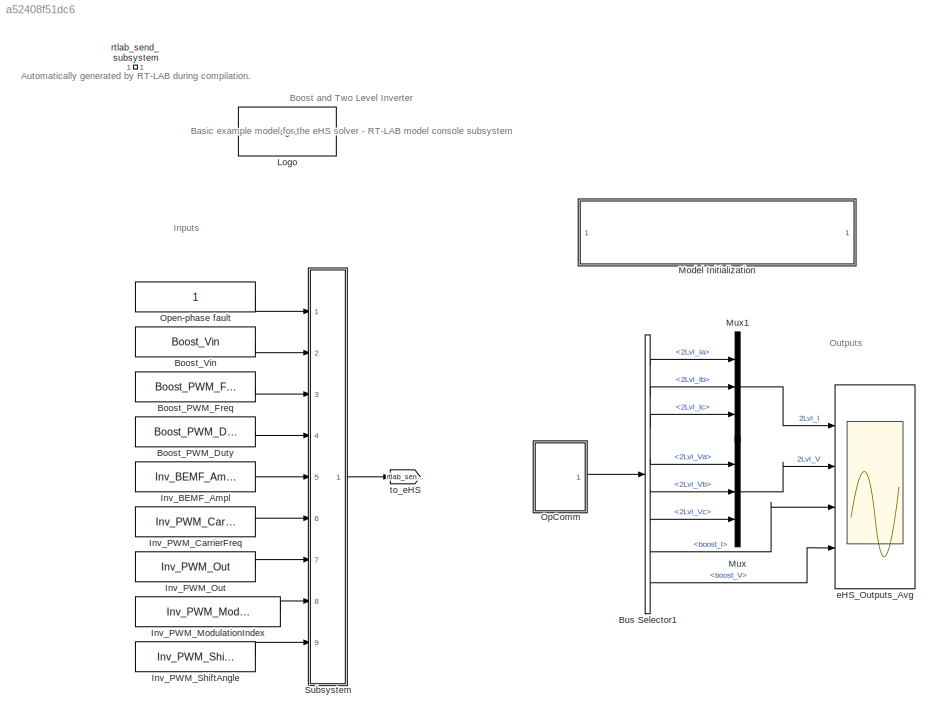
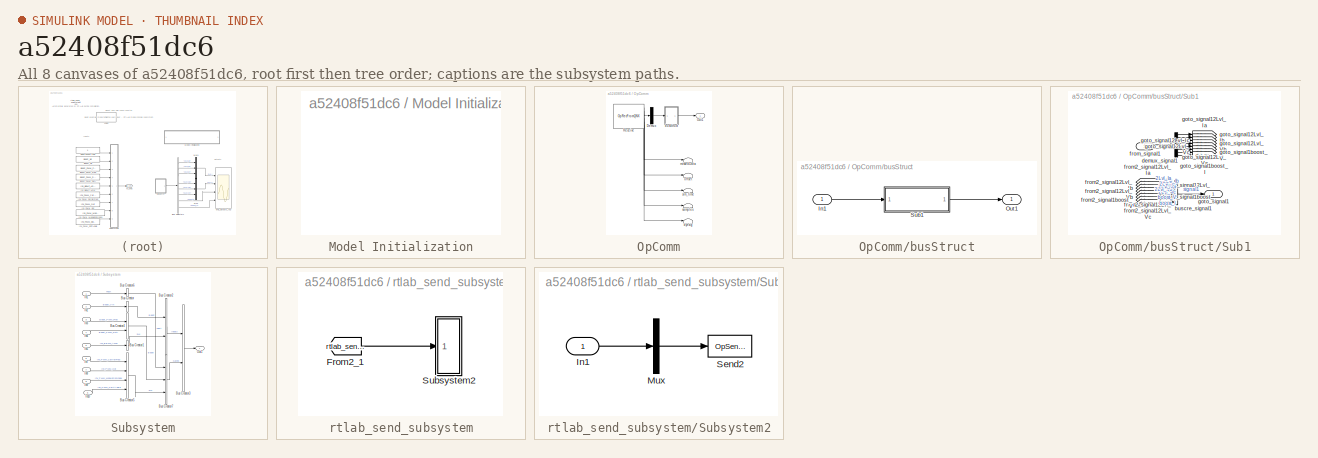
[diagram: thumbnail index - all 8 canvases of the model, root first then tree order]
MODEL slx_a52408f51dc6
KIND model
CONFIG AbsTol = auto
CONFIG EnableMultiTasking = off
CONFIG FixedStep = 2e-05
CONFIG InitFcn = Boost_and_Two_Level_Inverter_param;
CONFIG MaxStep = auto
CONFIG MinStep = auto
CONFIG PostLoadFcn = Boost_and_Two_Level_Inverter_param;
CONFIG RelTol = 1e-3
CONFIG SampleTimeConstraint = Unconstrained
CONFIG SolverName = ode3
CONFIG StartTime = 0.0
CONFIG StopTime = inf
BLOCK [Constant] Boost_PWM_Duty
  Value = Boost_PWM_Duty
BLOCK [Constant] Boost_PWM_Freq
  Value = Boost_PWM_Freq
BLOCK [Constant] Boost_Vin
  Value = Boost_Vin
BLOCK [BusSelector] Bus Selector1
  OutputSignals = 2Lvl_Ia,2Lvl_Ib,2Lvl_Ic,2Lvl_Va,2Lvl_Vb,2Lvl_Vc,boost_I,boost_V
  Ports = [1, 8]
BLOCK [Constant] Inv_BEMF_Ampl
  Value = Inv_BEMF_Ampl
BLOCK [Constant] Inv_PWM_CarrierFreq
  Value = Inv_PWM_CarrierFreq
BLOCK [Constant] Inv_PWM_ModulationIndex
  Value = Inv_PWM_ModulationIndex
BLOCK [Constant] Inv_PWM_Out
  Value = Inv_PWM_Out
BLOCK [Constant] Inv_PWM_ShiftAngle
  Value = Inv_PWM_ShiftAngle
BLOCK [Reference] Logo  REF=opal_lib/Logo1
  Ports = []
  SourceBlock = opal_lib/Logo1
  SourceType = Opal-RT logo
BLOCK [SubSystem] Model Initialization
  CopyFcn = set_param(gcb,'LinkStatus','none')
  Ports = []
  RequestExecContextInheritance = off
BLOCK [Mux] Mux
  DisplayOption = bar
  Inputs = 3
  Ports = [3, 1]
BLOCK [Mux] Mux1
  DisplayOption = bar
  Inputs = 3
  Ports = [3, 1]
BLOCK [SubSystem] OpComm
  Ports = [0, 1]
  RequestExecContextInheritance = off
BLOCK [Demux] OpComm/Demux
  Outputs = [8]
  Ports = [1, 1]
BLOCK [Outport] OpComm/Out1
BLOCK [Reference] OpComm/Receive  REF=opal_lib/Communication/OpRecFromQNX
  Ports = [0, 6]
  SourceBlock = opal_lib/Communication/OpRecFromQNX
  SourceType = OPAL Receive Icon
BLOCK [SubSystem] OpComm/busStruct
  Ports = [1, 1]
  RequestExecContextInheritance = off
BLOCK [Inport] OpComm/busStruct/In1
BLOCK [Outport] OpComm/busStruct/Out1
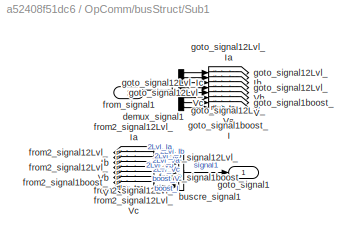
BLOCK [SubSystem] OpComm/busStruct/Sub1
  Ports = [1, 1]
  RequestExecContextInheritance = off
BLOCK [BusCreator] OpComm/busStruct/Sub1/buscre_signal1
  InheritFromInputs = on
  Inputs = 8
  Ports = [8, 1]
BLOCK [Demux] OpComm/busStruct/Sub1/demux_signal1
  Outputs = [1  1  1  1  1  1  1  1]
  Ports = [1, 8]
BLOCK [From] OpComm/busStruct/Sub1/from2_signal12Lvl_Ia
  GotoTag = rtlab_tag_1
BLOCK [From] OpComm/busStruct/Sub1/from2_signal12Lvl_Ib
  GotoTag = rtlab_tag_2
BLOCK [From] OpComm/busStruct/Sub1/from2_signal12Lvl_Ic
  GotoTag = rtlab_tag_3
BLOCK [From] OpComm/busStruct/Sub1/from2_signal12Lvl_Va
  GotoTag = rtlab_tag_4
BLOCK [From] OpComm/busStruct/Sub1/from2_signal12Lvl_Vb
  GotoTag = rtlab_tag_5
BLOCK [From] OpComm/busStruct/Sub1/from2_signal12Lvl_Vc
  GotoTag = rtlab_tag_6
BLOCK [From] OpComm/busStruct/Sub1/from2_signal1boost_I
  GotoTag = rtlab_tag_7
BLOCK [From] OpComm/busStruct/Sub1/from2_signal1boost_V
  GotoTag = rtlab_tag_8
BLOCK [Inport] OpComm/busStruct/Sub1/from_signal1
BLOCK [Outport] OpComm/busStruct/Sub1/goto_signal1
BLOCK [Goto] OpComm/busStruct/Sub1/goto_signal12Lvl_Ia
  GotoTag = rtlab_tag_1
BLOCK [Goto] OpComm/busStruct/Sub1/goto_signal12Lvl_Ib
  GotoTag = rtlab_tag_2
BLOCK [Goto] OpComm/busStruct/Sub1/goto_signal12Lvl_Ic
  GotoTag = rtlab_tag_3
BLOCK [Goto] OpComm/busStruct/Sub1/goto_signal12Lvl_Va
  GotoTag = rtlab_tag_4
BLOCK [Goto] OpComm/busStruct/Sub1/goto_signal12Lvl_Vb
  GotoTag = rtlab_tag_5
BLOCK [Goto] OpComm/busStruct/Sub1/goto_signal12Lvl_Vc
  GotoTag = rtlab_tag_6
BLOCK [Goto] OpComm/busStruct/Sub1/goto_signal1boost_I
  GotoTag = rtlab_tag_7
BLOCK [Goto] OpComm/busStruct/Sub1/goto_signal1boost_V
  GotoTag = rtlab_tag_8
BLOCK [Terminator] OpComm/dynsig
BLOCK [Terminator] OpComm/missedData
BLOCK [Terminator] OpComm/offset
BLOCK [Terminator] OpComm/samples
BLOCK [Terminator] OpComm/sim_time
BLOCK [Constant] Open-phase fault
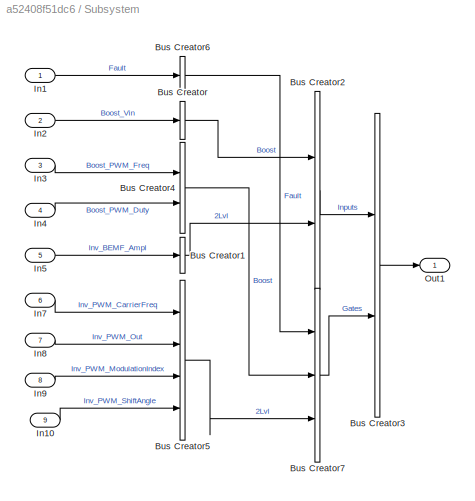
BLOCK [SubSystem] Subsystem
  Ports = [9, 1]
  RequestExecContextInheritance = off
BLOCK [BusCreator] Subsystem/Bus Creator
  DisplayOption = bar
  InheritFromInputs = on
  Inputs = 1
  Ports = [1, 1]
BLOCK [BusCreator] Subsystem/Bus Creator1
  DisplayOption = bar
  InheritFromInputs = on
  Inputs = 1
  Ports = [1, 1]
BLOCK [BusCreator] Subsystem/Bus Creator2
  DisplayOption = bar
  InheritFromInputs = on
  Inputs = 2
  Ports = [2, 1]
BLOCK [BusCreator] Subsystem/Bus Creator3
  DisplayOption = bar
  InheritFromInputs = on
  Inputs = 2
  Ports = [2, 1]
BLOCK [BusCreator] Subsystem/Bus Creator4
  DisplayOption = bar
  InheritFromInputs = on
  Inputs = 2
  Ports = [2, 1]
BLOCK [BusCreator] Subsystem/Bus Creator5
  DisplayOption = bar
  InheritFromInputs = on
  Inputs = 4
  Ports = [4, 1]
BLOCK [BusCreator] Subsystem/Bus Creator6
  DisplayOption = bar
  InheritFromInputs = on
  Inputs = 1
  Ports = [1, 1]
BLOCK [BusCreator] Subsystem/Bus Creator7
  DisplayOption = bar
  InheritFromInputs = on
  Inputs = 3
  Ports = [3, 1]
BLOCK [Inport] Subsystem/In1
BLOCK [Inport] Subsystem/In10
  Port = 9
BLOCK [Inport] Subsystem/In2
  Port = 2
BLOCK [Inport] Subsystem/In3
  Port = 3
BLOCK [Inport] Subsystem/In4
  Port = 4
BLOCK [Inport] Subsystem/In5
  Port = 5
BLOCK [Inport] Subsystem/In7
  Port = 6
BLOCK [Inport] Subsystem/In8
  Port = 7
BLOCK [Inport] Subsystem/In9
  Port = 8
BLOCK [Outport] Subsystem/Out1
  VectorParamsAs1DForOutWhenUnconnected = off
BLOCK [Scope] eHS_Outputs_Avg
  Floating = off
  NumInputPorts = 4
  Ports = [4]
  ScopeSpecificationString = Simulink.scopes.TimeScopeBlockCfg('CurrentConfiguration', extmgr.ConfigurationSet(extmgr.Configuration('Core','General UI',true),extmgr.Configuration('Core','Source UI',true),extmgr.Configuration('Sources','WiredSimulink',true,'DataLoggingLimitDataPoints',true,'DataLoggingSaveFormat','Array','DataLoggingDecimation','1','DataLoggingDecimateData',true),extmgr.Configuration('Visuals','Time Domain',tr...<+3637ch>
BLOCK [SubSystem] rtlab_send_subsystem
  Ports = []
  Priority = -100
  RequestExecContextInheritance = off
BLOCK [From] rtlab_send_subsystem/From2_1
  GotoTag = rtlab_send_1
  TagVisibility = global
BLOCK [SubSystem] rtlab_send_subsystem/Subsystem2
  Ports = [1]
  RequestExecContextInheritance = off
BLOCK [Inport] rtlab_send_subsystem/Subsystem2/In1
  PortDimensions = 9
BLOCK [Mux] rtlab_send_subsystem/Subsystem2/Mux
  Inputs = 1
  Ports = [1, 1]
BLOCK [Reference] rtlab_send_subsystem/Subsystem2/Send2  REF=opal_lib/Communication/OpSendPar
ToQNX
  Ports = [1]
  SourceBlock = opal_lib/Communication/OpSendPar\nToQNX
  SourceType = OPAL Send Icon
BLOCK [Goto] to_eHS
  GotoTag = rtlab_send_1
  TagVisibility = global
ANNOTATION (root): Automatically generated by RT-LAB during compilation.
ANNOTATION (root): Basic example model for the eHS solver - RT-LAB model console subsystem
ANNOTATION (root): Boost and Two Level Inverter
ANNOTATION (root): Inputs
ANNOTATION (root): Outputs
LINE Boost_PWM_Duty:1 -> Subsystem:4
LINE Boost_PWM_Freq:1 -> Subsystem:3
LINE Boost_Vin:1 -> Subsystem:2
LINE Bus Selector1:1 -> Mux1:1
LINE Bus Selector1:2 -> Mux1:2
LINE Bus Selector1:3 -> Mux1:3
LINE Bus Selector1:4 -> Mux:1
LINE Bus Selector1:5 -> Mux:2
LINE Bus Selector1:6 -> Mux:3
LINE Bus Selector1:7 -> eHS_Outputs_Avg:3
LINE Bus Selector1:8 -> eHS_Outputs_Avg:4
LINE Inv_BEMF_Ampl:1 -> Subsystem:5
LINE Inv_PWM_CarrierFreq:1 -> Subsystem:6
LINE Inv_PWM_ModulationIndex:1 -> Subsystem:8
LINE Inv_PWM_Out:1 -> Subsystem:7
LINE Inv_PWM_ShiftAngle:1 -> Subsystem:9
LINE Mux1:1 -> eHS_Outputs_Avg:1
LINE Mux:1 -> eHS_Outputs_Avg:2
LINE OpComm/Demux:1 -> OpComm/busStruct:1
LINE OpComm/Receive:1 -> OpComm/Demux:1
LINE OpComm/Receive:2 -> OpComm/missedData:1
LINE OpComm/Receive:3 -> OpComm/offset:1
LINE OpComm/Receive:4 -> OpComm/sim_time:1
LINE OpComm/Receive:5 -> OpComm/samples:1
LINE OpComm/Receive:6 -> OpComm/dynsig:1
LINE OpComm/busStruct/In1:1 -> OpComm/busStruct/Sub1:1
LINE OpComm/busStruct/Sub1/buscre_signal1:1 -> OpComm/busStruct/Sub1/goto_signal1:1
LINE OpComm/busStruct/Sub1/demux_signal1:1 -> OpComm/busStruct/Sub1/goto_signal12Lvl_Ia:1
LINE OpComm/busStruct/Sub1/demux_signal1:2 -> OpComm/busStruct/Sub1/goto_signal12Lvl_Ib:1
LINE OpComm/busStruct/Sub1/demux_signal1:3 -> OpComm/busStruct/Sub1/goto_signal12Lvl_Ic:1
LINE OpComm/busStruct/Sub1/demux_signal1:4 -> OpComm/busStruct/Sub1/goto_signal12Lvl_Va:1
LINE OpComm/busStruct/Sub1/demux_signal1:5 -> OpComm/busStruct/Sub1/goto_signal12Lvl_Vb:1
LINE OpComm/busStruct/Sub1/demux_signal1:6 -> OpComm/busStruct/Sub1/goto_signal12Lvl_Vc:1
LINE OpComm/busStruct/Sub1/demux_signal1:7 -> OpComm/busStruct/Sub1/goto_signal1boost_I:1
LINE OpComm/busStruct/Sub1/demux_signal1:8 -> OpComm/busStruct/Sub1/goto_signal1boost_V:1
LINE OpComm/busStruct/Sub1/from2_signal12Lvl_Ia:1 -> OpComm/busStruct/Sub1/buscre_signal1:1
LINE OpComm/busStruct/Sub1/from2_signal12Lvl_Ib:1 -> OpComm/busStruct/Sub1/buscre_signal1:2
LINE OpComm/busStruct/Sub1/from2_signal12Lvl_Ic:1 -> OpComm/busStruct/Sub1/buscre_signal1:3
LINE OpComm/busStruct/Sub1/from2_signal12Lvl_Va:1 -> OpComm/busStruct/Sub1/buscre_signal1:4
LINE OpComm/busStruct/Sub1/from2_signal12Lvl_Vb:1 -> OpComm/busStruct/Sub1/buscre_signal1:5
LINE OpComm/busStruct/Sub1/from2_signal12Lvl_Vc:1 -> OpComm/busStruct/Sub1/buscre_signal1:6
LINE OpComm/busStruct/Sub1/from2_signal1boost_I:1 -> OpComm/busStruct/Sub1/buscre_signal1:7
LINE OpComm/busStruct/Sub1/from2_signal1boost_V:1 -> OpComm/busStruct/Sub1/buscre_signal1:8
LINE OpComm/busStruct/Sub1/from_signal1:1 -> OpComm/busStruct/Sub1/demux_signal1:1
LINE OpComm/busStruct/Sub1:1 -> OpComm/busStruct/Out1:1
LINE OpComm/busStruct:1 -> OpComm/Out1:1
LINE OpComm:1 -> Bus Selector1:1
LINE Open-phase fault:1 -> Subsystem:1
LINE Subsystem/Bus Creator1:1 -> Subsystem/Bus Creator2:2
LINE Subsystem/Bus Creator2:1 -> Subsystem/Bus Creator3:1
LINE Subsystem/Bus Creator3:1 -> Subsystem/Out1:1
LINE Subsystem/Bus Creator4:1 -> Subsystem/Bus Creator7:2
LINE Subsystem/Bus Creator5:1 -> Subsystem/Bus Creator7:3
LINE Subsystem/Bus Creator6:1 -> Subsystem/Bus Creator7:1
LINE Subsystem/Bus Creator7:1 -> Subsystem/Bus Creator3:2
LINE Subsystem/Bus Creator:1 -> Subsystem/Bus Creator2:1
LINE Subsystem/In10:1 -> Subsystem/Bus Creator5:4
LINE Subsystem/In1:1 -> Subsystem/Bus Creator6:1
LINE Subsystem/In2:1 -> Subsystem/Bus Creator:1
LINE Subsystem/In3:1 -> Subsystem/Bus Creator4:1
LINE Subsystem/In4:1 -> Subsystem/Bus Creator4:2
LINE Subsystem/In5:1 -> Subsystem/Bus Creator1:1
LINE Subsystem/In7:1 -> Subsystem/Bus Creator5:1
LINE Subsystem/In8:1 -> Subsystem/Bus Creator5:2
LINE Subsystem/In9:1 -> Subsystem/Bus Creator5:3
LINE Subsystem:1 -> to_eHS:1
LINE rtlab_send_subsystem/From2_1:1 -> rtlab_send_subsystem/Subsystem2:1
LINE rtlab_send_subsystem/Subsystem2/In1:1 -> rtlab_send_subsystem/Subsystem2/Mux:1
LINE rtlab_send_subsystem/Subsystem2/Mux:1 -> rtlab_send_subsystem/Subsystem2/Send2:1
